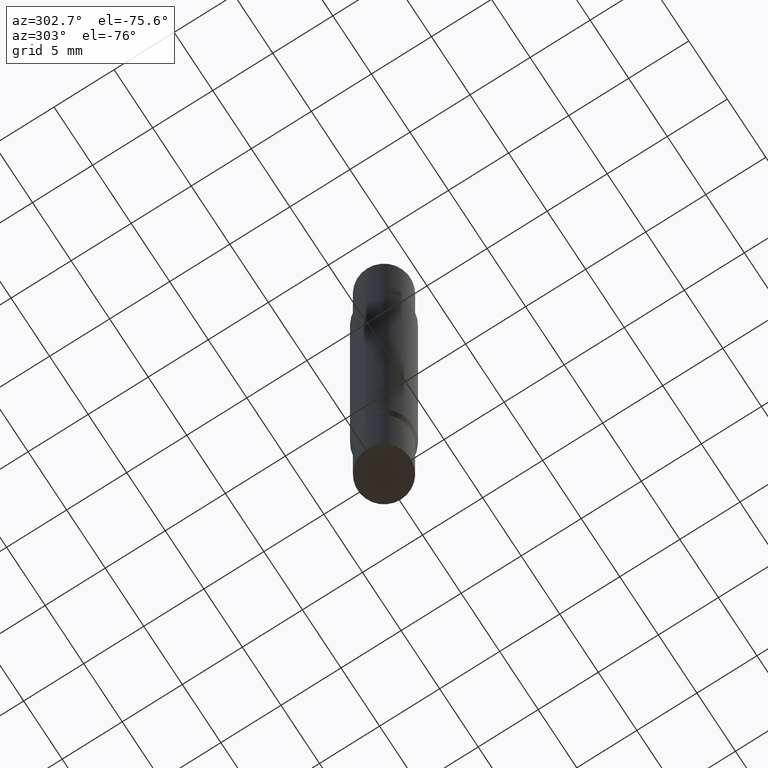
[diagram: clean part render]
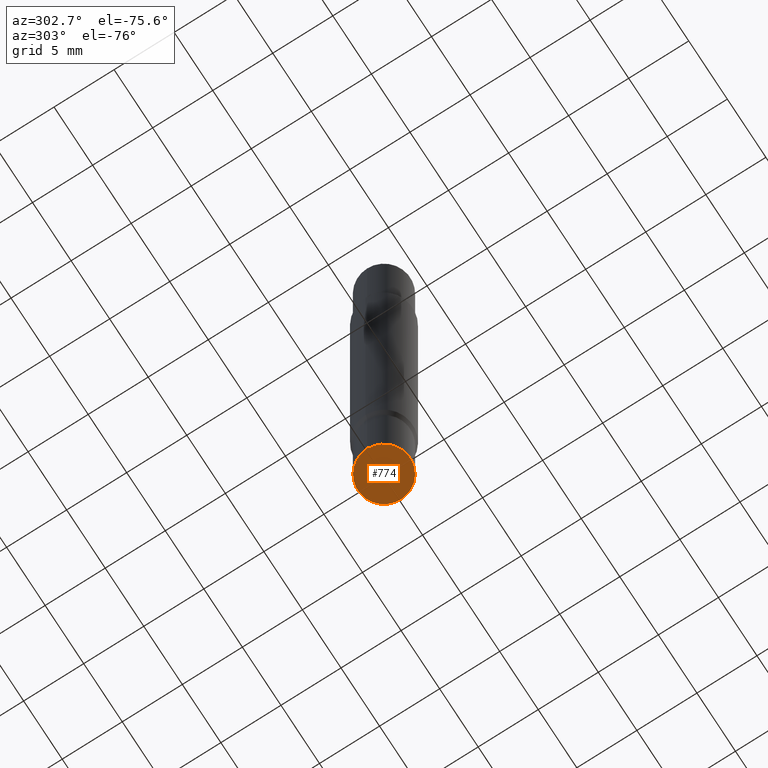
[diagram: same view with one face highlighted and labeled with its STEP entity id]
A machine part, auxiliary view. The second image highlights one B-rep face of the part: STEP entity #774.
In plain terms, the highlighted planar face has unit normal (-0, 0, 1).
Its self-contained STEP definition (entity closure, byte-faithful):
#21 = VERTEX_POINT ( 'NONE', #34 ) ;
#34 = CARTESIAN_POINT ( 'NONE',  ( 0.08594999999999998475, -7.583148319833424603E-15, -2.000000000000000000 ) ) ;
#57 = CARTESIAN_POINT ( 'NONE',  ( 4.890937612370273194E-29, -6.982962677686291165E-15, -2.000000000000000000 ) ) ;
#109 = ORIENTED_EDGE ( 'NONE', *, *, #219, .F. ) ;
#151 = DIRECTION ( 'NONE',  ( -2.445468806185136597E-29, 3.491481338843145583E-15, 1.000000000000000000 ) ) ;
#219 = EDGE_CURVE ( 'NONE', #404, #21, #448, .T. ) ;
#278 = FACE_OUTER_BOUND ( 'NONE', #650, .T. ) ;
#347 = ORIENTED_EDGE ( 'NONE', *, *, #921, .F. ) ;
#371 = CARTESIAN_POINT ( 'NONE',  ( -0.08594999999999998475, -5.827580107440954061E-15, -2.000000000000000000 ) ) ;
#404 = VERTEX_POINT ( 'NONE', #371 ) ;
#448 = CIRCLE ( 'NONE', #835, 0.08594999999999998475 ) ;
#473 = AXIS2_PLACEMENT_3D ( 'NONE', #57, #822, #507 ) ;
#507 = DIRECTION ( 'NONE',  ( 1.000000000000000000, -6.982962677686261977E-15, 0.000000000000000000 ) ) ;
#518 = CARTESIAN_POINT ( 'NONE',  ( 4.890937612370273194E-29, -6.982962677686291165E-15, -2.000000000000000000 ) ) ;
#568 = PLANE ( 'NONE',  #837 ) ;
#650 = EDGE_LOOP ( 'NONE', ( #347, #109 ) ) ;
#706 = DIRECTION ( 'NONE',  ( -2.438088387897960049E-29, 3.491481338843145188E-15, 1.000000000000000000 ) ) ;
#729 = CIRCLE ( 'NONE', #473, 0.08594999999999998475 ) ;
#774 = ADVANCED_FACE ( 'NONE', ( #278 ), #568, .F. ) ;
#822 = DIRECTION ( 'NONE',  ( -2.445468806185136597E-29, 3.491481338843145583E-15, 1.000000000000000000 ) ) ;
#835 = AXIS2_PLACEMENT_3D ( 'NONE', #518, #151, #903 ) ;
#837 = AXIS2_PLACEMENT_3D ( 'NONE', #937, #706, #929 ) ;
#903 = DIRECTION ( 'NONE',  ( 1.000000000000000000, -6.982962677686261977E-15, 0.000000000000000000 ) ) ;
#921 = EDGE_CURVE ( 'NONE', #21, #404, #729, .T. ) ;
#929 = DIRECTION ( 'NONE',  ( 1.000000000000000000, -6.982962677686265922E-15, 4.876176775795935793E-29 ) ) ;
#937 = CARTESIAN_POINT ( 'NONE',  ( 4.932139071496267018E-29, -6.923959843176446877E-15, -2.000000000000000000 ) ) ;